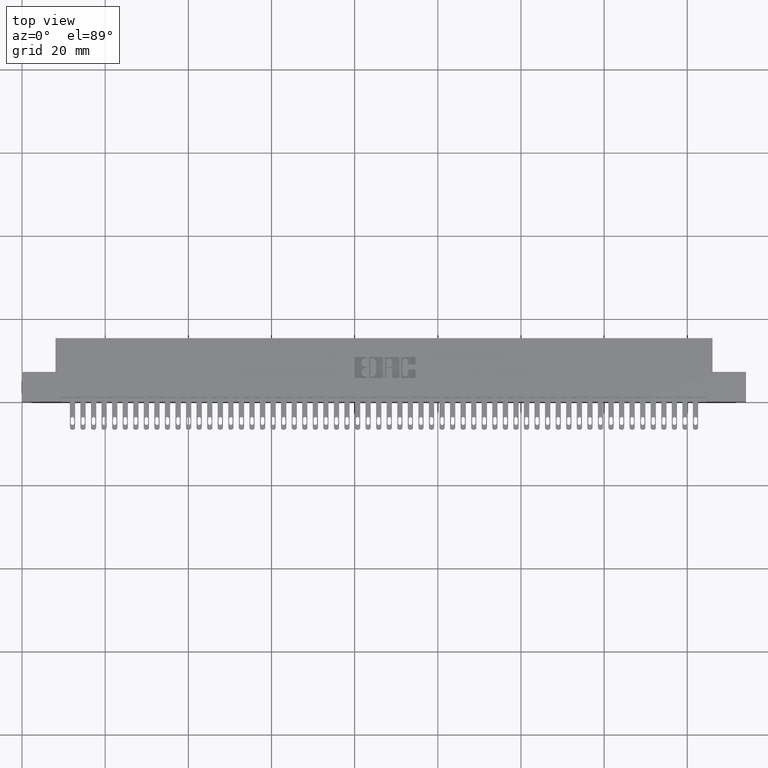
[diagram: clean part render]
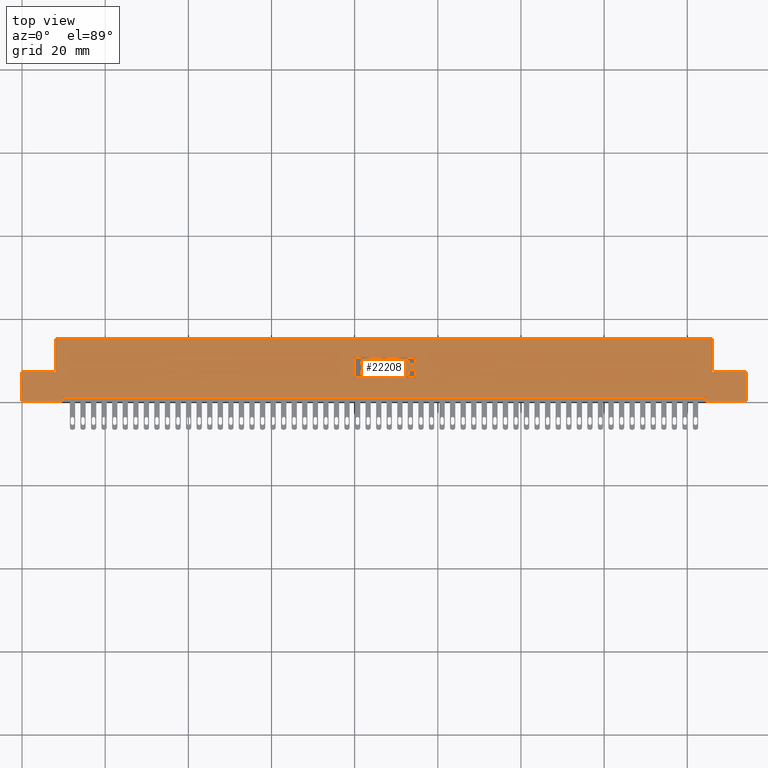
[diagram: same view with one face highlighted and labeled with its STEP entity id]
A machine part, top view. The second image highlights one B-rep face of the part: STEP entity #22208.
In plain terms, the highlighted planar face has unit normal (0, 0, -1).
Its self-contained STEP definition (entity closure, byte-faithful):
#83 = DIRECTION ( 'NONE',  ( 1.000000000000000000, 0.0000000000000000000, 0.0000000000000000000 ) ) ;
#142 = CIRCLE ( 'NONE', #11136, 0.006870969142663458500 ) ;
#182 = EDGE_CURVE ( 'NONE', #29426, #5958, #28536, .T. ) ;
#257 = EDGE_CURVE ( 'NONE', #28094, #14940, #14065, .T. ) ;
#273 = ORIENTED_EDGE ( 'NONE', *, *, #24806, .F. ) ;
#344 = DIRECTION ( 'NONE',  ( -0.0000000000000000000, 0.0000000000000000000, 1.000000000000000000 ) ) ;
#422 = AXIS2_PLACEMENT_3D ( 'NONE', #33633, #8412, #83 ) ;
#484 = DIRECTION ( 'NONE',  ( -1.000000000000000000, -3.530861605407645300E-014, 0.0000000000000000000 ) ) ;
#513 = VERTEX_POINT ( 'NONE', #24512 ) ;
#588 = CARTESIAN_POINT ( 'NONE',  ( 3.260633606535310300, 0.3200000000000206000, 0.0000000000000000000 ) ) ;
#658 = DIRECTION ( 'NONE',  ( 1.000000000000000000, 0.0000000000000000000, 0.0000000000000000000 ) ) ;
#722 = DIRECTION ( 'NONE',  ( -0.0000000000000000000, 0.0000000000000000000, 1.000000000000000000 ) ) ;
#857 = CARTESIAN_POINT ( 'NONE',  ( 3.215726915352927800, 0.0000000000000000000, 0.0000000000000000000 ) ) ;
#869 = ORIENTED_EDGE ( 'NONE', *, *, #33970, .F. ) ;
#888 = EDGE_LOOP ( 'NONE', ( #27186, #25539, #28767, #16270, #30651, #32415, #15872, #12394, #14517, #20937, #17443, #18911 ) ) ;
#950 = VECTOR ( 'NONE', #4045, 39.37007874015748100 ) ;
#958 = DIRECTION ( 'NONE',  ( -0.0000000000000000000, 0.0000000000000000000, 1.000000000000000000 ) ) ;
#1008 = ORIENTED_EDGE ( 'NONE', *, *, #15369, .T. ) ;
#1038 = DIRECTION ( 'NONE',  ( 1.000000000000000000, 0.0000000000000000000, 0.0000000000000000000 ) ) ;
#1060 = CARTESIAN_POINT ( 'NONE',  ( 0.3775000000000000600, 0.04000000000000000100, 1.136376037298107100E-019 ) ) ;
#1229 = CARTESIAN_POINT ( 'NONE',  ( 3.247137060005109300, 0.2669953808994906500, 0.0000000000000000000 ) ) ;
#1237 = LINE ( 'NONE', #17691, #13021 ) ;
#1342 = DIRECTION ( 'NONE',  ( 1.000000000000000000, 0.0000000000000000000, 0.0000000000000000000 ) ) ;
#1380 = EDGE_LOOP ( 'NONE', ( #12006, #3403, #28157, #36165, #16628, #26714, #25190, #32218, #13237, #24721, #2341, #11481, #19254, #7897, #23385, #19857, #32421, #17117, #10881, #34400 ) ) ;
#1387 = AXIS2_PLACEMENT_3D ( 'NONE', #13082, #32801, #4878 ) ;
#1422 = EDGE_CURVE ( 'NONE', #31590, #28218, #26235, .T. ) ;
#1458 = ORIENTED_EDGE ( 'NONE', *, *, #10581, .T. ) ;
#1488 = CARTESIAN_POINT ( 'NONE',  ( 3.260633606415414200, 0.2218432979619859900, 0.0000000000000000000 ) ) ;
#1522 = VERTEX_POINT ( 'NONE', #27187 ) ;
#1556 = VERTEX_POINT ( 'NONE', #19366 ) ;
#1614 = EDGE_CURVE ( 'NONE', #24924, #32779, #2138, .T. ) ;
#1664 = DIRECTION ( 'NONE',  ( -0.0000000000000000000, 0.0000000000000000000, 1.000000000000000000 ) ) ;
#1705 = CARTESIAN_POINT ( 'NONE',  ( 3.247137060005125300, 0.3730046191005200700, 0.0000000000000000000 ) ) ;
#1762 = CARTESIAN_POINT ( 'NONE',  ( 3.445904381632127300, 0.4181567020380069200, 0.0000000000000000000 ) ) ;
#1811 = VECTOR ( 'NONE', #11572, 39.37007874015748100 ) ;
#1816 = CARTESIAN_POINT ( 'NONE',  ( 6.854999999999999500, 0.2799999999999999700, 0.0000000000000000000 ) ) ;
#1829 = CARTESIAN_POINT ( 'NONE',  ( 0.0000000000000000000, 0.4181567020380330100, 0.0000000000000000000 ) ) ;
#1891 = DIRECTION ( 'NONE',  ( -0.0000000000000000000, 0.0000000000000000000, 1.000000000000000000 ) ) ;
#1893 = CARTESIAN_POINT ( 'NONE',  ( 3.436088711428330700, 0.4083410318342103900, 0.0000000000000000000 ) ) ;
#1914 = CARTESIAN_POINT ( 'NONE',  ( 6.854999999999999500, 0.5999999999999999800, 0.0000000000000000000 ) ) ;
#1916 = DIRECTION ( 'NONE',  ( -0.0000000000000000000, 0.0000000000000000000, 1.000000000000000000 ) ) ;
#1943 = CIRCLE ( 'NONE', #17086, 0.009815670203806345400 ) ;
#2068 = CARTESIAN_POINT ( 'NONE',  ( 0.3165000000000001100, 0.5999999999999999800, 0.0000000000000000000 ) ) ;
#2125 = DIRECTION ( 'NONE',  ( 1.000000000000000000, 0.0000000000000000000, 0.0000000000000000000 ) ) ;
#2138 = LINE ( 'NONE', #11277, #6556 ) ;
#2140 = ORIENTED_EDGE ( 'NONE', *, *, #32390, .T. ) ;
#2160 = LINE ( 'NONE', #31107, #30637 ) ;
#2165 = VERTEX_POINT ( 'NONE', #3718 ) ;
#2215 = FACE_BOUND ( 'NONE', #20001, .T. ) ;
#2267 = CARTESIAN_POINT ( 'NONE',  ( 3.459646319917449600, 0.3131290308573488900, 0.0000000000000000000 ) ) ;
#2341 = ORIENTED_EDGE ( 'NONE', *, *, #28091, .F. ) ;
#2443 = CARTESIAN_POINT ( 'NONE',  ( 3.714362961706152900, 0.2915345564089706900, 0.0000000000000000000 ) ) ;
#2468 = VERTEX_POINT ( 'NONE', #17093 ) ;
#2556 = DIRECTION ( 'NONE',  ( -0.0000000000000000000, 0.0000000000000000000, 1.000000000000000000 ) ) ;
#2595 = VERTEX_POINT ( 'NONE', #5952 ) ;
#2597 = CARTESIAN_POINT ( 'NONE',  ( 3.260633606535351200, 0.4112857328953865600, 0.0000000000000000000 ) ) ;
#2630 = DIRECTION ( 'NONE',  ( -0.0000000000000000000, 0.0000000000000000000, 1.000000000000000000 ) ) ;
#2647 = CARTESIAN_POINT ( 'NONE',  ( 6.854999999999999500, 0.2799999999999999700, 0.0000000000000000000 ) ) ;
#2721 = AXIS2_PLACEMENT_3D ( 'NONE', #28030, #8584, #19971 ) ;
#2728 = VECTOR ( 'NONE', #8685, 39.37007874015748100 ) ;
#2787 = CARTESIAN_POINT ( 'NONE',  ( 3.561729290037011400, 0.4083410318342106700, 0.0000000000000000000 ) ) ;
#2996 = DIRECTION ( 'NONE',  ( -0.0000000000000000000, 0.0000000000000000000, 1.000000000000000000 ) ) ;
#3014 = CIRCLE ( 'NONE', #18135, 0.009815670203795964800 ) ;
#3099 = CARTESIAN_POINT ( 'NONE',  ( -0.0000000000000000000, 0.3489562271012338600, 0.0000000000000000000 ) ) ;
#3215 = CIRCLE ( 'NONE', #21134, 0.006870969142663458500 ) ;
#3237 = LINE ( 'NONE', #12219, #8912 ) ;
#3249 = VECTOR ( 'NONE', #35472, 39.37007874015748100 ) ;
#3262 = EDGE_LOOP ( 'NONE', ( #6557, #35604, #21933, #869, #11954, #29688, #28333, #33171 ) ) ;
#3333 = CIRCLE ( 'NONE', #23689, 0.03141014465221592800 ) ;
#3355 = EDGE_CURVE ( 'NONE', #13932, #15362, #11262, .T. ) ;
#3403 = ORIENTED_EDGE ( 'NONE', *, *, #24390, .F. ) ;
#3428 = CARTESIAN_POINT ( 'NONE',  ( -0.0000000000000000000, 0.3131290308573571000, 0.0000000000000000000 ) ) ;
#3496 = DIRECTION ( 'NONE',  ( -0.0000000000000000000, 1.000000000000000000, -0.0000000000000000000 ) ) ;
#3581 = ORIENTED_EDGE ( 'NONE', *, *, #9251, .F. ) ;
#3674 = CARTESIAN_POINT ( 'NONE',  ( -0.0000000000000000000, 0.2218432979619834600, 0.0000000000000000000 ) ) ;
#3718 = CARTESIAN_POINT ( 'NONE',  ( 3.267504575677997500, 0.2287142671046482300, 0.0000000000000000000 ) ) ;
#3801 = DIRECTION ( 'NONE',  ( 1.000000000000000000, 0.0000000000000000000, 0.0000000000000000000 ) ) ;
#3863 = LINE ( 'NONE', #6323, #25292 ) ;
#3891 = CARTESIAN_POINT ( 'NONE',  ( 3.247137060005125300, 0.4044147637527360000, 0.0000000000000000000 ) ) ;
#3927 = DIRECTION ( 'NONE',  ( -0.0000000000000000000, 0.0000000000000000000, 1.000000000000000000 ) ) ;
#3972 = DIRECTION ( 'NONE',  ( 0.0000000000000000000, 1.000000000000000000, -0.0000000000000000000 ) ) ;
#4006 = DIRECTION ( 'NONE',  ( 1.000000000000000000, 0.0000000000000000000, 0.0000000000000000000 ) ) ;
#4045 = DIRECTION ( 'NONE',  ( 1.000000000000000000, 0.0000000000000000000, 0.0000000000000000000 ) ) ;
#4049 = ORIENTED_EDGE ( 'NONE', *, *, #7816, .F. ) ;
#4141 = CARTESIAN_POINT ( 'NONE',  ( 3.445904381632127300, 0.4083410318342103900, 0.0000000000000000000 ) ) ;
#4170 = VERTEX_POINT ( 'NONE', #14580 ) ;
#4204 = LINE ( 'NONE', #33877, #33105 ) ;
#4386 = CARTESIAN_POINT ( 'NONE',  ( 3.714362961706166600, 0.3587718973050389400, 0.0000000000000000000 ) ) ;
#4479 = CIRCLE ( 'NONE', #11009, 0.009815670203840767500 ) ;
#4609 = DIRECTION ( 'NONE',  ( 1.000000000000000000, -0.0000000000000000000, 2.468737042736138900E-015 ) ) ;
#4676 = DIRECTION ( 'NONE',  ( 1.000000000000000000, 0.0000000000000000000, 0.0000000000000000000 ) ) ;
#4718 = VECTOR ( 'NONE', #658, 39.37007874015748100 ) ;
#4722 = CARTESIAN_POINT ( 'NONE',  ( 3.260633606415414200, 0.2355852362473104800, 0.0000000000000000000 ) ) ;
#4745 = CARTESIAN_POINT ( 'NONE',  ( 0.0000000000000000000, 0.0000000000000000000, 0.0000000000000000000 ) ) ;
#4747 = CARTESIAN_POINT ( 'NONE',  ( 0.0000000000000000000, 0.5999999999999999800, 0.0000000000000000000 ) ) ;
#4828 = VECTOR ( 'NONE', #4609, 39.37007874015748100 ) ;
#4856 = VERTEX_POINT ( 'NONE', #4722 ) ;
#4878 = DIRECTION ( 'NONE',  ( 1.000000000000000000, 0.0000000000000000000, 0.0000000000000000000 ) ) ;
#5017 = CIRCLE ( 'NONE', #11254, 0.03141014465218151100 ) ;
#5241 = DIRECTION ( 'NONE',  ( 1.000000000000000000, 0.0000000000000000000, 0.0000000000000000000 ) ) ;
#5258 = VERTEX_POINT ( 'NONE', #2647 ) ;
#5338 = CARTESIAN_POINT ( 'NONE',  ( 0.0000000000000000000, 0.3013502266127578400, 0.0000000000000000000 ) ) ;
#5409 = CIRCLE ( 'NONE', #21502, 0.009815670203787221800 ) ;
#5412 = EDGE_CURVE ( 'NONE', #20356, #36076, #1237, .T. ) ;
#5442 = CARTESIAN_POINT ( 'NONE',  ( 3.561729290037010600, 0.2316589681657811300, 0.0000000000000000000 ) ) ;
#5581 = LINE ( 'NONE', #16029, #26523 ) ;
#5588 = DIRECTION ( 'NONE',  ( -0.0000000000000000000, 1.000000000000000000, -0.0000000000000000000 ) ) ;
#5609 = VERTEX_POINT ( 'NONE', #19276 ) ;
#5745 = CARTESIAN_POINT ( 'NONE',  ( 3.724178631909972100, 0.4083410318341951200, 0.0000000000000000000 ) ) ;
#5820 = CARTESIAN_POINT ( 'NONE',  ( 3.598538053301299400, 0.4083410318342103900, 0.0000000000000000000 ) ) ;
#5952 = CARTESIAN_POINT ( 'NONE',  ( 3.724178631909972100, 0.3587718973050389400, 0.0000000000000000000 ) ) ;
#5958 = VERTEX_POINT ( 'NONE', #11940 ) ;
#5989 = CARTESIAN_POINT ( 'NONE',  ( 3.654978156973165900, 0.3587718973050455000, 0.0000000000000000000 ) ) ;
#5992 = LINE ( 'NONE', #27278, #34875 ) ;
#6001 = ORIENTED_EDGE ( 'NONE', *, *, #33985, .T. ) ;
#6245 = EDGE_CURVE ( 'NONE', #32102, #17165, #3333, .T. ) ;
#6265 = VERTEX_POINT ( 'NONE', #15928 ) ;
#6268 = CARTESIAN_POINT ( 'NONE',  ( 0.0000000000000000000, 0.3268709691426841500, 0.0000000000000000000 ) ) ;
#6306 = LINE ( 'NONE', #35545, #35180 ) ;
#6323 = CARTESIAN_POINT ( 'NONE',  ( -1.598036302492475200E-015, 0.2218432979619625000, 0.0000000000000000000 ) ) ;
#6443 = CARTESIAN_POINT ( 'NONE',  ( 3.293270709962976100, 0.2316589681657902100, 0.0000000000000000000 ) ) ;
#6556 = VECTOR ( 'NONE', #8250, 39.37007874015748100 ) ;
#6557 = ORIENTED_EDGE ( 'NONE', *, *, #31942, .F. ) ;
#6662 = VERTEX_POINT ( 'NONE', #35636 ) ;
#6718 = VECTOR ( 'NONE', #35820, 39.37007874015748100 ) ;
#6772 = DIRECTION ( 'NONE',  ( 0.0000000000000000000, 1.000000000000000000, -0.0000000000000000000 ) ) ;
#6819 = DIRECTION ( 'NONE',  ( 1.000000000000000000, 0.0000000000000000000, 0.0000000000000000000 ) ) ;
#6825 = LINE ( 'NONE', #21126, #34406 ) ;
#7041 = EDGE_CURVE ( 'NONE', #28094, #27509, #32643, .T. ) ;
#7171 = EDGE_CURVE ( 'NONE', #4170, #27568, #5017, .T. ) ;
#7218 = CARTESIAN_POINT ( 'NONE',  ( 3.260633606535310300, 0.3200000000000206000, 0.0000000000000000000 ) ) ;
#7399 = EDGE_CURVE ( 'NONE', #32701, #20017, #26422, .T. ) ;
#7407 = ORIENTED_EDGE ( 'NONE', *, *, #19122, .T. ) ;
#7481 = VERTEX_POINT ( 'NONE', #27747 ) ;
#7573 = VERTEX_POINT ( 'NONE', #31308 ) ;
#7672 = VECTOR ( 'NONE', #9060, 39.37007874015748100 ) ;
#7772 = AXIS2_PLACEMENT_3D ( 'NONE', #35060, #1664, #32632 ) ;
#7794 = ORIENTED_EDGE ( 'NONE', *, *, #28452, .F. ) ;
#7816 = EDGE_CURVE ( 'NONE', #19500, #26234, #22470, .T. ) ;
#7863 = DIRECTION ( 'NONE',  ( 1.000000000000000000, 0.0000000000000000000, 0.0000000000000000000 ) ) ;
#7897 = ORIENTED_EDGE ( 'NONE', *, *, #8720, .F. ) ;
#7986 = VECTOR ( 'NONE', #24876, 39.37007874015748100 ) ;
#8155 = DIRECTION ( 'NONE',  ( -1.000000000000000000, 0.0000000000000000000, 0.0000000000000000000 ) ) ;
#8242 = CARTESIAN_POINT ( 'NONE',  ( 3.146526440416115300, 0.4083410318342103900, 0.0000000000000000000 ) ) ;
#8250 = DIRECTION ( 'NONE',  ( 0.0000000000000000000, -1.000000000000000000, 0.0000000000000000000 ) ) ;
#8408 = VECTOR ( 'NONE', #3496, 39.37007874015748100 ) ;
#8412 = DIRECTION ( 'NONE',  ( -0.0000000000000000000, 0.0000000000000000000, 1.000000000000000000 ) ) ;
#8430 = LINE ( 'NONE', #18757, #7986 ) ;
#8445 = EDGE_CURVE ( 'NONE', #13974, #23868, #8430, .T. ) ;
#8568 = ORIENTED_EDGE ( 'NONE', *, *, #16587, .F. ) ;
#8584 = DIRECTION ( 'NONE',  ( -0.0000000000000000000, 0.0000000000000000000, 1.000000000000000000 ) ) ;
#8628 = CARTESIAN_POINT ( 'NONE',  ( 3.293270709962976100, 0.2218432979619834600, 0.0000000000000000000 ) ) ;
#8665 = CARTESIAN_POINT ( 'NONE',  ( 3.654978156973165900, 0.3781578454992601800, 0.0000000000000000000 ) ) ;
#8685 = DIRECTION ( 'NONE',  ( -1.000000000000000000, 0.0000000000000000000, 0.0000000000000000000 ) ) ;
#8720 = EDGE_CURVE ( 'NONE', #20183, #27552, #31607, .T. ) ;
#8788 = ORIENTED_EDGE ( 'NONE', *, *, #30129, .T. ) ;
#8796 = DIRECTION ( 'NONE',  ( 1.000000000000000000, 0.0000000000000000000, 0.0000000000000000000 ) ) ;
#8848 = LINE ( 'NONE', #31983, #34712 ) ;
#8874 = VERTEX_POINT ( 'NONE', #10852 ) ;
#8882 = LINE ( 'NONE', #33720, #34745 ) ;
#8912 = VECTOR ( 'NONE', #6772, 39.37007874015748100 ) ;
#8971 = CIRCLE ( 'NONE', #13309, 0.006870969142662365600 ) ;
#9049 = ORIENTED_EDGE ( 'NONE', *, *, #18374, .F. ) ;
#9060 = DIRECTION ( 'NONE',  ( 1.000000000000000000, 0.0000000000000000000, 0.0000000000000000000 ) ) ;
#9201 = EDGE_CURVE ( 'NONE', #19009, #20798, #23748, .T. ) ;
#9226 = VECTOR ( 'NONE', #12445, 39.37007874015748100 ) ;
#9251 = EDGE_CURVE ( 'NONE', #14859, #23174, #9690, .T. ) ;
#9271 = DIRECTION ( 'NONE',  ( 1.000000000000000000, 0.0000000000000000000, 0.0000000000000000000 ) ) ;
#9401 = LINE ( 'NONE', #16624, #32209 ) ;
#9433 = DIRECTION ( 'NONE',  ( -1.000000000000000000, -0.0000000000000000000, 1.862911536554273900E-020 ) ) ;
#9439 = ORIENTED_EDGE ( 'NONE', *, *, #24206, .F. ) ;
#9479 = VERTEX_POINT ( 'NONE', #23806 ) ;
#9588 = DIRECTION ( 'NONE',  ( -0.0000000000000000000, 0.0000000000000000000, 1.000000000000000000 ) ) ;
#9606 = DIRECTION ( 'NONE',  ( -0.0000000000000000000, 0.0000000000000000000, 1.000000000000000000 ) ) ;
#9638 = FACE_BOUND ( 'NONE', #24815, .T. ) ;
#9648 = VECTOR ( 'NONE', #484, 39.37007874015748100 ) ;
#9663 = CARTESIAN_POINT ( 'NONE',  ( 3.156342110619938100, 0.4181567020380330100, 0.0000000000000000000 ) ) ;
#9690 = CIRCLE ( 'NONE', #20712, 0.009815670203796511200 ) ;
#9809 = CIRCLE ( 'NONE', #15477, 0.009815670203805252500 ) ;
#9959 = ORIENTED_EDGE ( 'NONE', *, *, #6245, .T. ) ;
#9986 = EDGE_CURVE ( 'NONE', #34548, #34295, #25416, .T. ) ;
#9988 = DIRECTION ( 'NONE',  ( 1.000000000000000000, 0.0000000000000000000, 0.0000000000000000000 ) ) ;
#10087 = CARTESIAN_POINT ( 'NONE',  ( 3.146526440416115300, 0.0000000000000000000, 0.0000000000000000000 ) ) ;
#10105 = DIRECTION ( 'NONE',  ( -1.000000000000000000, 0.0000000000000000000, 0.0000000000000000000 ) ) ;
#10136 = EDGE_CURVE ( 'NONE', #20608, #20798, #11402, .T. ) ;
#10138 = LINE ( 'NONE', #6268, #2728 ) ;
#10209 = VECTOR ( 'NONE', #26814, 39.37007874015748100 ) ;
#10352 = CARTESIAN_POINT ( 'NONE',  ( 3.436088711428330700, 0.0000000000000000000, 0.0000000000000000000 ) ) ;
#10498 = DIRECTION ( 'NONE',  ( -0.0000000000000000000, 0.0000000000000000000, 1.000000000000000000 ) ) ;
#10581 = EDGE_CURVE ( 'NONE', #14859, #30068, #35438, .T. ) ;
#10647 = DIRECTION ( 'NONE',  ( -0.0000000000000000000, 0.0000000000000000000, 1.000000000000000000 ) ) ;
#10676 = LINE ( 'NONE', #14394, #21670 ) ;
#10682 = VERTEX_POINT ( 'NONE', #1488 ) ;
#10726 = DIRECTION ( 'NONE',  ( 1.000000000000000000, 0.0000000000000000000, 0.0000000000000000000 ) ) ;
#10783 = AXIS2_PLACEMENT_3D ( 'NONE', #25161, #10828, #25390 ) ;
#10828 = DIRECTION ( 'NONE',  ( 0.0000000000000000000, 0.0000000000000000000, -1.000000000000000000 ) ) ;
#10852 = CARTESIAN_POINT ( 'NONE',  ( 3.664793827176966400, 0.3013502266127578400, 0.0000000000000000000 ) ) ;
#10881 = ORIENTED_EDGE ( 'NONE', *, *, #7399, .F. ) ;
#10886 = CARTESIAN_POINT ( 'NONE',  ( 3.459646319917449600, 0.3033133606535458600, 0.0000000000000000000 ) ) ;
#10984 = LINE ( 'NONE', #12661, #18857 ) ;
#11009 = AXIS2_PLACEMENT_3D ( 'NONE', #23942, #9606, #15238 ) ;
#11020 = AXIS2_PLACEMENT_3D ( 'NONE', #16360, #2556, #16609 ) ;
#11136 = AXIS2_PLACEMENT_3D ( 'NONE', #588, #344, #4006 ) ;
#11254 = AXIS2_PLACEMENT_3D ( 'NONE', #1229, #3927, #1342 ) ;
#11262 = LINE ( 'NONE', #28915, #24408 ) ;
#11266 = VECTOR ( 'NONE', #10105, 39.37007874015748100 ) ;
#11277 = CARTESIAN_POINT ( 'NONE',  ( 3.654978156973165900, 0.0000000000000000000, 0.0000000000000000000 ) ) ;
#11313 = CARTESIAN_POINT ( 'NONE',  ( 3.247137060005084000, 0.2817188862052008000, 0.0000000000000000000 ) ) ;
#11338 = AXIS2_PLACEMENT_3D ( 'NONE', #11313, #2996, #13989 ) ;
#11402 = LINE ( 'NONE', #24416, #22791 ) ;
#11481 = ORIENTED_EDGE ( 'NONE', *, *, #34306, .F. ) ;
#11506 = CARTESIAN_POINT ( 'NONE',  ( 0.0000000000000000000, 0.4181567020380512800, 0.0000000000000000000 ) ) ;
#11536 = CARTESIAN_POINT ( 'NONE',  ( 3.156342110619938100, 0.4083410318342103900, 0.0000000000000000000 ) ) ;
#11572 = DIRECTION ( 'NONE',  ( 0.0000000000000000000, -1.000000000000000000, 0.0000000000000000000 ) ) ;
#11580 = CARTESIAN_POINT ( 'NONE',  ( 3.492528815100187900, 0.3131290308573500500, 0.0000000000000000000 ) ) ;
#11650 = CIRCLE ( 'NONE', #1387, 0.009815670203841313900 ) ;
#11783 = CIRCLE ( 'NONE', #14383, 0.006870969142662365600 ) ;
#11825 = ORIENTED_EDGE ( 'NONE', *, *, #23580, .F. ) ;
#11933 = CARTESIAN_POINT ( 'NONE',  ( 3.260633606535351200, 0.4044147637527360000, 0.0000000000000000000 ) ) ;
#11940 = CARTESIAN_POINT ( 'NONE',  ( 3.654978156973178700, 0.2618421540424533100, 0.0000000000000000000 ) ) ;
#11954 = ORIENTED_EDGE ( 'NONE', *, *, #24434, .F. ) ;
#11972 = CIRCLE ( 'NONE', #31200, 0.009815670203803066700 ) ;
#12006 = ORIENTED_EDGE ( 'NONE', *, *, #20427, .F. ) ;
#12032 = EDGE_CURVE ( 'NONE', #5609, #2468, #32465, .T. ) ;
#12070 = DIRECTION ( 'NONE',  ( -0.0000000000000000000, 0.0000000000000000000, 1.000000000000000000 ) ) ;
#12219 = CARTESIAN_POINT ( 'NONE',  ( 3.215726915352909600, 0.0000000000000000000, 0.0000000000000000000 ) ) ;
#12253 = VERTEX_POINT ( 'NONE', #23886 ) ;
#12298 = AXIS2_PLACEMENT_3D ( 'NONE', #12536, #1916, #21144 ) ;
#12394 = ORIENTED_EDGE ( 'NONE', *, *, #17742, .F. ) ;
#12398 = CARTESIAN_POINT ( 'NONE',  ( 3.588722383097458400, 0.4083410318342103900, 0.0000000000000000000 ) ) ;
#12408 = ORIENTED_EDGE ( 'NONE', *, *, #13256, .F. ) ;
#12445 = DIRECTION ( 'NONE',  ( 0.0000000000000000000, -1.000000000000000000, 0.0000000000000000000 ) ) ;
#12488 = CIRCLE ( 'NONE', #12298, 0.006870969142657995000 ) ;
#12536 = CARTESIAN_POINT ( 'NONE',  ( 3.442959680570987200, 0.2287142671046482300, 0.0000000000000000000 ) ) ;
#12661 = CARTESIAN_POINT ( 'NONE',  ( 3.724178631909972100, 0.0000000000000000000, 0.0000000000000000000 ) ) ;
#12735 = CARTESIAN_POINT ( 'NONE',  ( 3.561729290037013700, 0.4181567020380069200, 0.0000000000000000000 ) ) ;
#12775 = LINE ( 'NONE', #31424, #8408 ) ;
#12860 = VERTEX_POINT ( 'NONE', #27851 ) ;
#12955 = EDGE_CURVE ( 'NONE', #2165, #4856, #11783, .T. ) ;
#13005 = CARTESIAN_POINT ( 'NONE',  ( 3.260633606535335200, 0.2287142671046482300, 0.0000000000000000000 ) ) ;
#13020 = VERTEX_POINT ( 'NONE', #13711 ) ;
#13021 = VECTOR ( 'NONE', #20519, 39.37007874015748100 ) ;
#13082 = CARTESIAN_POINT ( 'NONE',  ( 3.409095618367827800, 0.4083410318342102800, 0.0000000000000000000 ) ) ;
#13214 = AXIS2_PLACEMENT_3D ( 'NONE', #24478, #10498, #27524 ) ;
#13237 = ORIENTED_EDGE ( 'NONE', *, *, #16486, .F. ) ;
#13256 = EDGE_CURVE ( 'NONE', #26004, #15259, #32363, .T. ) ;
#13309 = AXIS2_PLACEMENT_3D ( 'NONE', #36039, #22559, #33345 ) ;
#13446 = CIRCLE ( 'NONE', #422, 0.009815670203811809700 ) ;
#13459 = CARTESIAN_POINT ( 'NONE',  ( 0.3775000000000000600, 0.0000000000000000000, 0.0000000000000000000 ) ) ;
#13540 = CARTESIAN_POINT ( 'NONE',  ( 3.628721239177991700, 0.3781578459575298800, 0.0000000000000000000 ) ) ;
#13631 = DIRECTION ( 'NONE',  ( -0.0000000000000000000, 0.0000000000000000000, 1.000000000000000000 ) ) ;
#13711 = CARTESIAN_POINT ( 'NONE',  ( 3.436088711428330700, 0.2287142671046482300, 0.0000000000000000000 ) ) ;
#13722 = ORIENTED_EDGE ( 'NONE', *, *, #20207, .F. ) ;
#13932 = VERTEX_POINT ( 'NONE', #32925 ) ;
#13974 = VERTEX_POINT ( 'NONE', #27268 ) ;
#13989 = DIRECTION ( 'NONE',  ( 1.000000000000000000, 0.0000000000000000000, 0.0000000000000000000 ) ) ;
#14065 = CIRCLE ( 'NONE', #11338, 0.03141014465215583000 ) ;
#14097 = VERTEX_POINT ( 'NONE', #31192 ) ;
#14100 = DIRECTION ( 'NONE',  ( -1.000000000000000000, 0.0000000000000000000, 0.0000000000000000000 ) ) ;
#14103 = CARTESIAN_POINT ( 'NONE',  ( 3.260633606535351200, 0.4112857328953865600, 0.0000000000000000000 ) ) ;
#14195 = CIRCLE ( 'NONE', #30401, 0.009815670203797057700 ) ;
#14205 = ORIENTED_EDGE ( 'NONE', *, *, #7041, .F. ) ;
#14301 = DIRECTION ( 'NONE',  ( 0.0000000000000000000, 1.000000000000000000, -0.0000000000000000000 ) ) ;
#14383 = AXIS2_PLACEMENT_3D ( 'NONE', #13005, #1891, #4676 ) ;
#14394 = CARTESIAN_POINT ( 'NONE',  ( -0.0000000000000000000, 0.4044147637527360000, 0.0000000000000000000 ) ) ;
#14517 = ORIENTED_EDGE ( 'NONE', *, *, #5412, .F. ) ;
#14580 = CARTESIAN_POINT ( 'NONE',  ( 3.215726915352927800, 0.2669953808994906500, 0.0000000000000000000 ) ) ;
#14682 = CARTESIAN_POINT ( 'NONE',  ( 3.714362961706133800, 0.2218432979619834600, 0.0000000000000000000 ) ) ;
#14859 = VERTEX_POINT ( 'NONE', #1762 ) ;
#14899 = FACE_OUTER_BOUND ( 'NONE', #888, .T. ) ;
#14940 = VERTEX_POINT ( 'NONE', #34490 ) ;
#14981 = EDGE_CURVE ( 'NONE', #15362, #35509, #34855, .T. ) ;
#15016 = EDGE_CURVE ( 'NONE', #13020, #20387, #12488, .T. ) ;
#15190 = CARTESIAN_POINT ( 'NONE',  ( -0.0000000000000000000, 0.4181567020380069200, 0.0000000000000000000 ) ) ;
#15238 = DIRECTION ( 'NONE',  ( 1.000000000000000000, 0.0000000000000000000, 0.0000000000000000000 ) ) ;
#15259 = VERTEX_POINT ( 'NONE', #8242 ) ;
#15287 = ORIENTED_EDGE ( 'NONE', *, *, #26223, .F. ) ;
#15362 = VERTEX_POINT ( 'NONE', #28837 ) ;
#15369 = EDGE_CURVE ( 'NONE', #31844, #34548, #14195, .T. ) ;
#15477 = AXIS2_PLACEMENT_3D ( 'NONE', #4386, #34746, #23846 ) ;
#15479 = EDGE_CURVE ( 'NONE', #1522, #513, #6825, .T. ) ;
#15619 = DIRECTION ( 'NONE',  ( -0.0000000000000000000, 0.0000000000000000000, 1.000000000000000000 ) ) ;
#15667 = ORIENTED_EDGE ( 'NONE', *, *, #27813, .F. ) ;
#15872 = ORIENTED_EDGE ( 'NONE', *, *, #9201, .F. ) ;
#15919 = CARTESIAN_POINT ( 'NONE',  ( 3.714362961706168400, 0.4181567020380512800, 0.0000000000000000000 ) ) ;
#15928 = CARTESIAN_POINT ( 'NONE',  ( 3.602464321382818500, 0.3781578459575298800, 0.0000000000000000000 ) ) ;
#16029 = CARTESIAN_POINT ( 'NONE',  ( -2.801494792111651700E-014, 0.2355852362469227400, 0.0000000000000000000 ) ) ;
#16070 = VERTEX_POINT ( 'NONE', #28659 ) ;
#16111 = AXIS2_PLACEMENT_3D ( 'NONE', #13540, #24349, #16362 ) ;
#16204 = CARTESIAN_POINT ( 'NONE',  ( 3.714362961706166600, 0.3489562271012337500, 0.0000000000000000000 ) ) ;
#16235 = VERTEX_POINT ( 'NONE', #8628 ) ;
#16262 = DIRECTION ( 'NONE',  ( -1.000000000000000000, -1.189163988687022500E-013, 0.0000000000000000000 ) ) ;
#16270 = ORIENTED_EDGE ( 'NONE', *, *, #29360, .F. ) ;
#16360 = CARTESIAN_POINT ( 'NONE',  ( 3.714362961706131600, 0.4083410318342112200, 0.0000000000000000000 ) ) ;
#16362 = DIRECTION ( 'NONE',  ( 1.000000000000000000, 0.0000000000000000000, 0.0000000000000000000 ) ) ;
#16386 = VERTEX_POINT ( 'NONE', #24513 ) ;
#16402 = DIRECTION ( 'NONE',  ( -0.0000000000000000000, 0.0000000000000000000, 1.000000000000000000 ) ) ;
#16486 = EDGE_CURVE ( 'NONE', #8874, #29426, #23411, .T. ) ;
#16587 = EDGE_CURVE ( 'NONE', #31590, #17165, #3237, .T. ) ;
#16609 = DIRECTION ( 'NONE',  ( 1.000000000000000000, 0.0000000000000000000, 0.0000000000000000000 ) ) ;
#16624 = CARTESIAN_POINT ( 'NONE',  ( 6.477500000000000000, 0.04000000000000000100, 0.0000000000000000000 ) ) ;
#16628 = ORIENTED_EDGE ( 'NONE', *, *, #18329, .T. ) ;
#16721 = ORIENTED_EDGE ( 'NONE', *, *, #31514, .F. ) ;
#17033 = CARTESIAN_POINT ( 'NONE',  ( 3.418911288571669300, 0.4083410318342103900, 0.0000000000000000000 ) ) ;
#17086 = AXIS2_PLACEMENT_3D ( 'NONE', #20191, #722, #8796 ) ;
#17093 = CARTESIAN_POINT ( 'NONE',  ( 3.283455039759168900, 0.2316589681657902100, 0.0000000000000000000 ) ) ;
#17112 = DIRECTION ( 'NONE',  ( 1.000000000000000000, 0.0000000000000000000, 0.0000000000000000000 ) ) ;
#17117 = ORIENTED_EDGE ( 'NONE', *, *, #27101, .F. ) ;
#17142 = EDGE_CURVE ( 'NONE', #14097, #29197, #8882, .T. ) ;
#17165 = VERTEX_POINT ( 'NONE', #17425 ) ;
#17172 = LINE ( 'NONE', #10087, #6718 ) ;
#17286 = EDGE_CURVE ( 'NONE', #24771, #6265, #8848, .T. ) ;
#17301 = DIRECTION ( 'NONE',  ( -0.0000000000000000000, 0.0000000000000000000, 1.000000000000000000 ) ) ;
#17337 = LINE ( 'NONE', #10352, #19521 ) ;
#17381 = ORIENTED_EDGE ( 'NONE', *, *, #15016, .F. ) ;
#17425 = CARTESIAN_POINT ( 'NONE',  ( 3.215726915352909600, 0.3730046191005200700, 0.0000000000000000000 ) ) ;
#17443 = ORIENTED_EDGE ( 'NONE', *, *, #24107, .T. ) ;
#17497 = EDGE_CURVE ( 'NONE', #9479, #18927, #31656, .T. ) ;
#17499 = CARTESIAN_POINT ( 'NONE',  ( 0.0000000000000000000, 0.0000000000000000000, 0.0000000000000000000 ) ) ;
#17555 = DIRECTION ( 'NONE',  ( -0.0000000000000000000, 0.0000000000000000000, 1.000000000000000000 ) ) ;
#17664 = DIRECTION ( 'NONE',  ( 1.000000000000000000, 0.0000000000000000000, 0.0000000000000000000 ) ) ;
#17691 = CARTESIAN_POINT ( 'NONE',  ( -2.134256245050205600E-018, 0.2799999999999999700, 0.0000000000000000000 ) ) ;
#17742 = EDGE_CURVE ( 'NONE', #36076, #19009, #12775, .T. ) ;
#17796 = DIRECTION ( 'NONE',  ( -0.0000000000000000000, 0.0000000000000000000, 1.000000000000000000 ) ) ;
#17804 = CIRCLE ( 'NONE', #30237, 0.009815670203806891800 ) ;
#17818 = CIRCLE ( 'NONE', #13214, 0.009815670203806891800 ) ;
#17836 = CARTESIAN_POINT ( 'NONE',  ( 3.502344485303984900, 0.3033133606535437000, 0.0000000000000000000 ) ) ;
#18135 = AXIS2_PLACEMENT_3D ( 'NONE', #5442, #10647, #30039 ) ;
#18323 = ORIENTED_EDGE ( 'NONE', *, *, #7171, .T. ) ;
#18329 = EDGE_CURVE ( 'NONE', #24924, #6265, #25720, .T. ) ;
#18343 = CARTESIAN_POINT ( 'NONE',  ( 3.449830649713646800, 0.2287142671046482300, 0.0000000000000000000 ) ) ;
#18374 = EDGE_CURVE ( 'NONE', #18927, #10682, #3863, .T. ) ;
#18472 = CARTESIAN_POINT ( 'NONE',  ( 3.418911288571669300, 0.2316589681657902100, 0.0000000000000000000 ) ) ;
#18542 = LINE ( 'NONE', #11506, #33481 ) ;
#18619 = DIRECTION ( 'NONE',  ( 0.0000000000000000000, 1.000000000000000000, -0.0000000000000000000 ) ) ;
#18711 = LINE ( 'NONE', #1829, #11266 ) ;
#18757 = CARTESIAN_POINT ( 'NONE',  ( 0.0000000000000000000, 0.0000000000000000000, 0.0000000000000000000 ) ) ;
#18857 = VECTOR ( 'NONE', #24167, 39.37007874015748100 ) ;
#18873 = DIRECTION ( 'NONE',  ( -0.0000000000000000000, 0.0000000000000000000, 1.000000000000000000 ) ) ;
#18911 = ORIENTED_EDGE ( 'NONE', *, *, #14981, .F. ) ;
#18927 = VERTEX_POINT ( 'NONE', #32310 ) ;
#19009 = VERTEX_POINT ( 'NONE', #2068 ) ;
#19122 = EDGE_CURVE ( 'NONE', #13020, #23174, #17337, .T. ) ;
#19254 = ORIENTED_EDGE ( 'NONE', *, *, #20305, .F. ) ;
#19276 = CARTESIAN_POINT ( 'NONE',  ( 3.283455039759168900, 0.4083410318342103900, 0.0000000000000000000 ) ) ;
#19366 = CARTESIAN_POINT ( 'NONE',  ( 3.664793827176977500, 0.3489562271012338600, 0.0000000000000000000 ) ) ;
#19370 = VERTEX_POINT ( 'NONE', #22970 ) ;
#19470 = DIRECTION ( 'NONE',  ( 1.000000000000000000, 0.0000000000000000000, 0.0000000000000000000 ) ) ;
#19500 = VERTEX_POINT ( 'NONE', #11933 ) ;
#19521 = VECTOR ( 'NONE', #30222, 39.37007874015748100 ) ;
#19697 = EDGE_CURVE ( 'NONE', #31600, #22301, #23873, .T. ) ;
#19705 = EDGE_CURVE ( 'NONE', #10682, #2165, #8971, .T. ) ;
#19783 = ORIENTED_EDGE ( 'NONE', *, *, #19705, .F. ) ;
#19805 = EDGE_CURVE ( 'NONE', #12253, #8874, #33052, .T. ) ;
#19806 = DIRECTION ( 'NONE',  ( -0.0000000000000000000, -1.000000000000000000, -0.0000000000000000000 ) ) ;
#19838 = CARTESIAN_POINT ( 'NONE',  ( 3.598538053301299400, 0.4181567020380512800, 0.0000000000000000000 ) ) ;
#19857 = ORIENTED_EDGE ( 'NONE', *, *, #35835, .F. ) ;
#19971 = DIRECTION ( 'NONE',  ( 1.000000000000000000, 0.0000000000000000000, 0.0000000000000000000 ) ) ;
#20001 = EDGE_LOOP ( 'NONE', ( #9959, #8568, #34910, #32585, #15667, #31499, #14205, #25012, #9439, #18323, #25095, #34630, #19783, #9049, #29760, #7794, #12408, #273, #11825, #4049, #15287 ) ) ;
#20017 = VERTEX_POINT ( 'NONE', #15919 ) ;
#20115 = CARTESIAN_POINT ( 'NONE',  ( 6.538499999999999100, 0.5999999999999999800, -7.813552740259899900E-016 ) ) ;
#20183 = VERTEX_POINT ( 'NONE', #33664 ) ;
#20191 = CARTESIAN_POINT ( 'NONE',  ( 3.714362961706133800, 0.2316589681657902100, 0.0000000000000000000 ) ) ;
#20207 = EDGE_CURVE ( 'NONE', #12860, #29197, #31708, .T. ) ;
#20216 = VECTOR ( 'NONE', #35655, 39.37007874015748100 ) ;
#20305 = EDGE_CURVE ( 'NONE', #27552, #19370, #1943, .T. ) ;
#20353 = VERTEX_POINT ( 'NONE', #34154 ) ;
#20356 = VERTEX_POINT ( 'NONE', #28388 ) ;
#20387 = VERTEX_POINT ( 'NONE', #18343 ) ;
#20395 = CARTESIAN_POINT ( 'NONE',  ( 3.492528815100187900, 0.3033133606535530800, 0.0000000000000000000 ) ) ;
#20427 = EDGE_CURVE ( 'NONE', #24276, #2595, #9809, .T. ) ;
#20490 = EDGE_CURVE ( 'NONE', #27509, #20353, #3215, .T. ) ;
#20519 = DIRECTION ( 'NONE',  ( 1.000000000000000000, 0.0000000000000000000, 0.0000000000000000000 ) ) ;
#20608 = VERTEX_POINT ( 'NONE', #28172 ) ;
#20712 = AXIS2_PLACEMENT_3D ( 'NONE', #4141, #958, #9271 ) ;
#20798 = VERTEX_POINT ( 'NONE', #20115 ) ;
#20870 = AXIS2_PLACEMENT_3D ( 'NONE', #5820, #2630, #30534 ) ;
#20937 = ORIENTED_EDGE ( 'NONE', *, *, #33655, .T. ) ;
#21126 = CARTESIAN_POINT ( 'NONE',  ( 0.0000000000000000000, 0.4181567020380512800, 0.0000000000000000000 ) ) ;
#21134 = AXIS2_PLACEMENT_3D ( 'NONE', #7218, #26752, #9988 ) ;
#21144 = DIRECTION ( 'NONE',  ( 1.000000000000000000, 0.0000000000000000000, 0.0000000000000000000 ) ) ;
#21258 = VERTEX_POINT ( 'NONE', #23096 ) ;
#21262 = CARTESIAN_POINT ( 'NONE',  ( 3.598538053301265200, 0.2316589681657902100, 0.0000000000000000000 ) ) ;
#21287 = EDGE_CURVE ( 'NONE', #513, #5609, #4479, .T. ) ;
#21346 = CARTESIAN_POINT ( 'NONE',  ( -0.0000000000000000000, 0.2218432979619834600, 0.0000000000000000000 ) ) ;
#21450 = AXIS2_PLACEMENT_3D ( 'NONE', #11536, #17301, #28701 ) ;
#21452 = EDGE_CURVE ( 'NONE', #7481, #28218, #10138, .T. ) ;
#21492 = LINE ( 'NONE', #1816, #4828 ) ;
#21502 = AXIS2_PLACEMENT_3D ( 'NONE', #2443, #27146, #10726 ) ;
#21670 = VECTOR ( 'NONE', #17112, 39.37007874015748100 ) ;
#21769 = DIRECTION ( 'NONE',  ( -0.0000000000000000000, 0.0000000000000000000, 1.000000000000000000 ) ) ;
#21843 = CARTESIAN_POINT ( 'NONE',  ( 3.654978156973178700, 0.2915345564089689700, 0.0000000000000000000 ) ) ;
#21862 = EDGE_CURVE ( 'NONE', #24771, #5958, #29396, .T. ) ;
#21885 = LINE ( 'NONE', #17499, #24518 ) ;
#21933 = ORIENTED_EDGE ( 'NONE', *, *, #25476, .F. ) ;
#21953 = VECTOR ( 'NONE', #30701, 39.37007874015748100 ) ;
#22117 = PLANE ( 'NONE',  #10783 ) ;
#22132 = DIRECTION ( 'NONE',  ( -0.0000000000000000000, 0.0000000000000000000, 1.000000000000000000 ) ) ;
#22208 = ADVANCED_FACE ( 'NONE', ( #22360, #2215, #14899, #31987, #9638 ), #22117, .F. ) ;
#22301 = VERTEX_POINT ( 'NONE', #12398 ) ;
#22360 = FACE_BOUND ( 'NONE', #1380, .T. ) ;
#22470 = CIRCLE ( 'NONE', #29128, 0.006870969142648706400 ) ;
#22559 = DIRECTION ( 'NONE',  ( -0.0000000000000000000, 0.0000000000000000000, 1.000000000000000000 ) ) ;
#22791 = VECTOR ( 'NONE', #5588, 39.37007874015748100 ) ;
#22970 = CARTESIAN_POINT ( 'NONE',  ( 3.724178631909940100, 0.2316589681657832400, 0.0000000000000000000 ) ) ;
#23096 = CARTESIAN_POINT ( 'NONE',  ( 3.571544960240806300, 0.2316589681657811300, 0.0000000000000000000 ) ) ;
#23174 = VERTEX_POINT ( 'NONE', #1893 ) ;
#23334 = CARTESIAN_POINT ( 'NONE',  ( 3.512160155507785900, 0.2218432979619849000, 0.0000000000000000000 ) ) ;
#23385 = ORIENTED_EDGE ( 'NONE', *, *, #32495, .F. ) ;
#23408 = DIRECTION ( 'NONE',  ( 0.0000000000000000000, -1.000000000000000000, 0.0000000000000000000 ) ) ;
#23411 = CIRCLE ( 'NONE', #2721, 0.009815670203787768200 ) ;
#23524 = EDGE_CURVE ( 'NONE', #14097, #21258, #3014, .T. ) ;
#23580 = EDGE_CURVE ( 'NONE', #26234, #16386, #35862, .T. ) ;
#23689 = AXIS2_PLACEMENT_3D ( 'NONE', #1705, #21769, #6819 ) ;
#23747 = CARTESIAN_POINT ( 'NONE',  ( 3.247137060005109300, 0.2355852362473088700, 0.0000000000000000000 ) ) ;
#23748 = LINE ( 'NONE', #32065, #21953 ) ;
#23806 = CARTESIAN_POINT ( 'NONE',  ( 3.146526440416115300, 0.2316589681657902100, 0.0000000000000000000 ) ) ;
#23846 = DIRECTION ( 'NONE',  ( 1.000000000000000000, 0.0000000000000000000, 0.0000000000000000000 ) ) ;
#23859 = CARTESIAN_POINT ( 'NONE',  ( 3.724178631909940100, 0.2915345564089706900, 0.0000000000000000000 ) ) ;
#23868 = VERTEX_POINT ( 'NONE', #35986 ) ;
#23873 = CIRCLE ( 'NONE', #20870, 0.009815670203841313900 ) ;
#23886 = CARTESIAN_POINT ( 'NONE',  ( 3.714362961706156400, 0.3013502266127578400, 0.0000000000000000000 ) ) ;
#23942 = CARTESIAN_POINT ( 'NONE',  ( 3.293270709963009900, 0.4083410318342103900, 0.0000000000000000000 ) ) ;
#23968 = CIRCLE ( 'NONE', #29282, 0.009815670203795418300 ) ;
#24020 = LINE ( 'NONE', #3099, #4718 ) ;
#24025 = CARTESIAN_POINT ( 'NONE',  ( 3.215726915352909600, 0.3582811137948586100, 0.0000000000000000000 ) ) ;
#24107 = EDGE_CURVE ( 'NONE', #35134, #35509, #21885, .T. ) ;
#24167 = DIRECTION ( 'NONE',  ( 0.0000000000000000000, 1.000000000000000000, -0.0000000000000000000 ) ) ;
#24206 = EDGE_CURVE ( 'NONE', #4170, #14940, #33017, .T. ) ;
#24221 = ORIENTED_EDGE ( 'NONE', *, *, #23524, .F. ) ;
#24276 = VERTEX_POINT ( 'NONE', #16204 ) ;
#24349 = DIRECTION ( 'NONE',  ( -0.0000000000000000000, 0.0000000000000000000, 1.000000000000000000 ) ) ;
#24390 = EDGE_CURVE ( 'NONE', #1556, #24276, #24020, .T. ) ;
#24408 = VECTOR ( 'NONE', #9433, 39.37007874015748100 ) ;
#24416 = CARTESIAN_POINT ( 'NONE',  ( 6.538499999999999100, 0.2799999999999999700, -7.813552740259899900E-016 ) ) ;
#24434 = EDGE_CURVE ( 'NONE', #2468, #16235, #30142, .T. ) ;
#24478 = CARTESIAN_POINT ( 'NONE',  ( 3.409095618367861600, 0.2316589681657902100, 0.0000000000000000000 ) ) ;
#24512 = CARTESIAN_POINT ( 'NONE',  ( 3.293270709963009900, 0.4181567020380512800, 0.0000000000000000000 ) ) ;
#24513 = CARTESIAN_POINT ( 'NONE',  ( 3.260633606535351200, 0.4181567020380330100, 0.0000000000000000000 ) ) ;
#24518 = VECTOR ( 'NONE', #3801, 39.37007874015748100 ) ;
#24533 = DIRECTION ( 'NONE',  ( 0.0000000000000000000, 1.000000000000000000, -0.0000000000000000000 ) ) ;
#24586 = CARTESIAN_POINT ( 'NONE',  ( 3.247137060005084000, 0.3131290308573571000, 0.0000000000000000000 ) ) ;
#24714 = LINE ( 'NONE', #21346, #10209 ) ;
#24721 = ORIENTED_EDGE ( 'NONE', *, *, #19805, .F. ) ;
#24771 = VERTEX_POINT ( 'NONE', #34282 ) ;
#24806 = EDGE_CURVE ( 'NONE', #16386, #26004, #18711, .T. ) ;
#24815 = EDGE_LOOP ( 'NONE', ( #1458, #16721, #31659, #24221, #33583, #13722, #8788, #1008, #29325, #6001, #2140, #17381, #7407, #3581 ) ) ;
#24876 = DIRECTION ( 'NONE',  ( 1.000000000000000000, 0.0000000000000000000, 0.0000000000000000000 ) ) ;
#24924 = VERTEX_POINT ( 'NONE', #8665 ) ;
#24928 = AXIS2_PLACEMENT_3D ( 'NONE', #2597, #18873, #2125 ) ;
#24942 = VECTOR ( 'NONE', #34556, 39.37007874015748100 ) ;
#25012 = ORIENTED_EDGE ( 'NONE', *, *, #257, .T. ) ;
#25095 = ORIENTED_EDGE ( 'NONE', *, *, #25479, .F. ) ;
#25152 = DIRECTION ( 'NONE',  ( 1.000000000000000000, 0.0000000000000000000, 0.0000000000000000000 ) ) ;
#25161 = CARTESIAN_POINT ( 'NONE',  ( 0.0000000000000000000, 0.5999999999999999800, 0.0000000000000000000 ) ) ;
#25190 = ORIENTED_EDGE ( 'NONE', *, *, #21862, .T. ) ;
#25292 = VECTOR ( 'NONE', #28438, 39.37007874015748100 ) ;
#25390 = DIRECTION ( 'NONE',  ( -1.000000000000000000, 0.0000000000000000000, -0.0000000000000000000 ) ) ;
#25398 = LINE ( 'NONE', #28921, #35034 ) ;
#25416 = LINE ( 'NONE', #28384, #9648 ) ;
#25476 = EDGE_CURVE ( 'NONE', #16070, #27657, #17818, .T. ) ;
#25479 = EDGE_CURVE ( 'NONE', #4856, #27568, #5581, .T. ) ;
#25486 = EDGE_CURVE ( 'NONE', #27657, #27995, #5992, .T. ) ;
#25539 = ORIENTED_EDGE ( 'NONE', *, *, #26189, .T. ) ;
#25720 = CIRCLE ( 'NONE', #16111, 0.02625691779517339700 ) ;
#26004 = VERTEX_POINT ( 'NONE', #9663 ) ;
#26189 = EDGE_CURVE ( 'NONE', #13932, #13974, #9401, .T. ) ;
#26223 = EDGE_CURVE ( 'NONE', #32102, #19500, #10676, .T. ) ;
#26234 = VERTEX_POINT ( 'NONE', #33895 ) ;
#26235 = CIRCLE ( 'NONE', #32490, 0.03141014465217440600 ) ;
#26260 = DIRECTION ( 'NONE',  ( 0.0000000000000000000, -1.000000000000000000, 0.0000000000000000000 ) ) ;
#26365 = DIRECTION ( 'NONE',  ( -0.0000000000000000000, -1.000000000000000000, -0.0000000000000000000 ) ) ;
#26422 = CIRCLE ( 'NONE', #11020, 0.009815670203840221000 ) ;
#26523 = VECTOR ( 'NONE', #16262, 39.37007874015748100 ) ;
#26714 = ORIENTED_EDGE ( 'NONE', *, *, #17286, .F. ) ;
#26752 = DIRECTION ( 'NONE',  ( -0.0000000000000000000, 0.0000000000000000000, 1.000000000000000000 ) ) ;
#26814 = DIRECTION ( 'NONE',  ( 1.000000000000000000, 0.0000000000000000000, 0.0000000000000000000 ) ) ;
#26861 = DIRECTION ( 'NONE',  ( 1.000000000000000000, 0.0000000000000000000, 0.0000000000000000000 ) ) ;
#27101 = EDGE_CURVE ( 'NONE', #20017, #31600, #18542, .T. ) ;
#27146 = DIRECTION ( 'NONE',  ( -0.0000000000000000000, 0.0000000000000000000, 1.000000000000000000 ) ) ;
#27186 = ORIENTED_EDGE ( 'NONE', *, *, #3355, .F. ) ;
#27187 = CARTESIAN_POINT ( 'NONE',  ( 3.409095618367896200, 0.4181567020380512800, 0.0000000000000000000 ) ) ;
#27268 = CARTESIAN_POINT ( 'NONE',  ( 6.477500000000000000, 0.0000000000000000000, 0.0000000000000000000 ) ) ;
#27278 = CARTESIAN_POINT ( 'NONE',  ( 3.418911288571669300, 0.0000000000000000000, 0.0000000000000000000 ) ) ;
#27386 = VECTOR ( 'NONE', #26365, 39.37007874015748100 ) ;
#27409 = VERTEX_POINT ( 'NONE', #36146 ) ;
#27509 = VERTEX_POINT ( 'NONE', #28154 ) ;
#27524 = DIRECTION ( 'NONE',  ( 1.000000000000000000, 0.0000000000000000000, 0.0000000000000000000 ) ) ;
#27552 = VERTEX_POINT ( 'NONE', #14682 ) ;
#27568 = VERTEX_POINT ( 'NONE', #23747 ) ;
#27657 = VERTEX_POINT ( 'NONE', #18472 ) ;
#27747 = CARTESIAN_POINT ( 'NONE',  ( 3.260633606535310300, 0.3268709691426841500, 0.0000000000000000000 ) ) ;
#27803 = VECTOR ( 'NONE', #8155, 39.37007874015748100 ) ;
#27813 = EDGE_CURVE ( 'NONE', #20353, #7481, #142, .T. ) ;
#27851 = CARTESIAN_POINT ( 'NONE',  ( 3.502344485303984900, 0.2316589681657881000, 0.0000000000000000000 ) ) ;
#27995 = VERTEX_POINT ( 'NONE', #17033 ) ;
#28030 = CARTESIAN_POINT ( 'NONE',  ( 3.664793827176966400, 0.2915345564089698600, 0.0000000000000000000 ) ) ;
#28091 = EDGE_CURVE ( 'NONE', #35057, #12253, #5409, .T. ) ;
#28094 = VERTEX_POINT ( 'NONE', #24586 ) ;
#28154 = CARTESIAN_POINT ( 'NONE',  ( 3.260633606415388500, 0.3131290308573571000, 0.0000000000000000000 ) ) ;
#28157 = ORIENTED_EDGE ( 'NONE', *, *, #31474, .F. ) ;
#28172 = CARTESIAN_POINT ( 'NONE',  ( 6.538499999999999100, 0.2799999999999999700, -7.813552740259899900E-016 ) ) ;
#28218 = VERTEX_POINT ( 'NONE', #30705 ) ;
#28333 = ORIENTED_EDGE ( 'NONE', *, *, #21287, .F. ) ;
#28353 = CARTESIAN_POINT ( 'NONE',  ( 3.571544960240806300, 0.0000000000000000000, 0.0000000000000000000 ) ) ;
#28384 = CARTESIAN_POINT ( 'NONE',  ( -1.105615272592287700E-014, 0.3131290308572267100, 0.0000000000000000000 ) ) ;
#28388 = CARTESIAN_POINT ( 'NONE',  ( -2.134256245050205600E-018, 0.2799999999999999700, 0.0000000000000000000 ) ) ;
#28438 = DIRECTION ( 'NONE',  ( 1.000000000000000000, 7.203446383881635600E-015, 0.0000000000000000000 ) ) ;
#28452 = EDGE_CURVE ( 'NONE', #15259, #9479, #17172, .T. ) ;
#28485 = LINE ( 'NONE', #1914, #35050 ) ;
#28521 = DIRECTION ( 'NONE',  ( 0.0000000000000000000, 1.000000000000000000, -0.0000000000000000000 ) ) ;
#28536 = LINE ( 'NONE', #29204, #20216 ) ;
#28619 = DIRECTION ( 'NONE',  ( 1.000000000000000000, 0.0000000000000000000, 0.0000000000000000000 ) ) ;
#28659 = CARTESIAN_POINT ( 'NONE',  ( 3.409095618367861600, 0.2218432979619834600, 0.0000000000000000000 ) ) ;
#28701 = DIRECTION ( 'NONE',  ( 1.000000000000000000, 0.0000000000000000000, 0.0000000000000000000 ) ) ;
#28757 = CARTESIAN_POINT ( 'NONE',  ( 3.156342110619922100, 0.2316589681657902100, 0.0000000000000000000 ) ) ;
#28767 = ORIENTED_EDGE ( 'NONE', *, *, #8445, .T. ) ;
#28837 = CARTESIAN_POINT ( 'NONE',  ( 0.3775000000000000600, 0.04000000000000000100, 1.136376037298107100E-019 ) ) ;
#28915 = CARTESIAN_POINT ( 'NONE',  ( 0.3775000000000000600, 0.04000000000000000100, 1.136376037298107100E-019 ) ) ;
#28921 = CARTESIAN_POINT ( 'NONE',  ( 3.588722383097458400, 0.0000000000000000000, 0.0000000000000000000 ) ) ;
#29073 = EDGE_CURVE ( 'NONE', #27409, #21258, #30704, .T. ) ;
#29122 = LINE ( 'NONE', #4747, #3249 ) ;
#29128 = AXIS2_PLACEMENT_3D ( 'NONE', #14103, #13631, #25152 ) ;
#29197 = VERTEX_POINT ( 'NONE', #23334 ) ;
#29204 = CARTESIAN_POINT ( 'NONE',  ( 3.654978156973178700, 0.0000000000000000000, 0.0000000000000000000 ) ) ;
#29270 = EDGE_CURVE ( 'NONE', #2595, #32701, #10984, .T. ) ;
#29282 = AXIS2_PLACEMENT_3D ( 'NONE', #2787, #22132, #5241 ) ;
#29325 = ORIENTED_EDGE ( 'NONE', *, *, #9986, .T. ) ;
#29360 = EDGE_CURVE ( 'NONE', #5258, #23868, #28485, .T. ) ;
#29396 = CIRCLE ( 'NONE', #7772, 0.02625691779517995400 ) ;
#29426 = VERTEX_POINT ( 'NONE', #21843 ) ;
#29688 = ORIENTED_EDGE ( 'NONE', *, *, #12032, .F. ) ;
#29760 = ORIENTED_EDGE ( 'NONE', *, *, #17497, .F. ) ;
#30039 = DIRECTION ( 'NONE',  ( 1.000000000000000000, 0.0000000000000000000, 0.0000000000000000000 ) ) ;
#30068 = VERTEX_POINT ( 'NONE', #12735 ) ;
#30093 = DIRECTION ( 'NONE',  ( -0.0000000000000000000, 0.0000000000000000000, 1.000000000000000000 ) ) ;
#30129 = EDGE_CURVE ( 'NONE', #12860, #31844, #2160, .T. ) ;
#30142 = CIRCLE ( 'NONE', #31045, 0.009815670203806891800 ) ;
#30222 = DIRECTION ( 'NONE',  ( 0.0000000000000000000, 1.000000000000000000, -0.0000000000000000000 ) ) ;
#30237 = AXIS2_PLACEMENT_3D ( 'NONE', #21262, #15619, #26861 ) ;
#30401 = AXIS2_PLACEMENT_3D ( 'NONE', #20395, #9588, #1038 ) ;
#30516 = DIRECTION ( 'NONE',  ( -1.000000000000000000, 0.0000000000000000000, 0.0000000000000000000 ) ) ;
#30534 = DIRECTION ( 'NONE',  ( 1.000000000000000000, 0.0000000000000000000, 0.0000000000000000000 ) ) ;
#30637 = VECTOR ( 'NONE', #14301, 39.37007874015748100 ) ;
#30651 = ORIENTED_EDGE ( 'NONE', *, *, #36066, .F. ) ;
#30695 = VECTOR ( 'NONE', #28521, 39.37007874015748100 ) ;
#30701 = DIRECTION ( 'NONE',  ( 1.000000000000000000, 0.0000000000000000000, 0.0000000000000000000 ) ) ;
#30704 = LINE ( 'NONE', #28353, #1811 ) ;
#30705 = CARTESIAN_POINT ( 'NONE',  ( 3.247137060005084000, 0.3268709691426841500, 0.0000000000000000000 ) ) ;
#31045 = AXIS2_PLACEMENT_3D ( 'NONE', #6443, #17796, #17664 ) ;
#31107 = CARTESIAN_POINT ( 'NONE',  ( 3.502344485303984900, 0.0000000000000000000, 0.0000000000000000000 ) ) ;
#31192 = CARTESIAN_POINT ( 'NONE',  ( 3.561729290037010600, 0.2218432979619849000, 0.0000000000000000000 ) ) ;
#31200 = AXIS2_PLACEMENT_3D ( 'NONE', #10886, #16402, #7863 ) ;
#31308 = CARTESIAN_POINT ( 'NONE',  ( 3.588722383097458400, 0.2316589681657902100, 0.0000000000000000000 ) ) ;
#31424 = CARTESIAN_POINT ( 'NONE',  ( 0.3165000000000001100, 0.2799999999999999700, 0.0000000000000000000 ) ) ;
#31474 = EDGE_CURVE ( 'NONE', #32779, #1556, #13446, .T. ) ;
#31499 = ORIENTED_EDGE ( 'NONE', *, *, #20490, .F. ) ;
#31514 = EDGE_CURVE ( 'NONE', #27409, #30068, #23968, .T. ) ;
#31590 = VERTEX_POINT ( 'NONE', #24025 ) ;
#31600 = VERTEX_POINT ( 'NONE', #19838 ) ;
#31607 = LINE ( 'NONE', #3674, #950 ) ;
#31656 = CIRCLE ( 'NONE', #34427, 0.009815670203805798900 ) ;
#31659 = ORIENTED_EDGE ( 'NONE', *, *, #29073, .T. ) ;
#31708 = CIRCLE ( 'NONE', #32806, 0.009815670203803066700 ) ;
#31844 = VERTEX_POINT ( 'NONE', #17836 ) ;
#31922 = CARTESIAN_POINT ( 'NONE',  ( 3.283455039759168900, 0.0000000000000000000, 0.0000000000000000000 ) ) ;
#31942 = EDGE_CURVE ( 'NONE', #27995, #1522, #11650, .T. ) ;
#31983 = CARTESIAN_POINT ( 'NONE',  ( 3.602464321382818500, 0.0000000000000000000, 0.0000000000000000000 ) ) ;
#31987 = FACE_BOUND ( 'NONE', #3262, .T. ) ;
#32065 = CARTESIAN_POINT ( 'NONE',  ( 0.0000000000000000000, 0.5999999999999999800, 0.0000000000000000000 ) ) ;
#32102 = VERTEX_POINT ( 'NONE', #3891 ) ;
#32209 = VECTOR ( 'NONE', #19806, 39.37007874015748100 ) ;
#32218 = ORIENTED_EDGE ( 'NONE', *, *, #182, .F. ) ;
#32310 = CARTESIAN_POINT ( 'NONE',  ( 3.156342110619918100, 0.2218432979619852400, 0.0000000000000000000 ) ) ;
#32363 = CIRCLE ( 'NONE', #21450, 0.009815670203822736800 ) ;
#32390 = EDGE_CURVE ( 'NONE', #6662, #20387, #4204, .T. ) ;
#32415 = ORIENTED_EDGE ( 'NONE', *, *, #10136, .T. ) ;
#32421 = ORIENTED_EDGE ( 'NONE', *, *, #19697, .F. ) ;
#32465 = LINE ( 'NONE', #31922, #9226 ) ;
#32490 = AXIS2_PLACEMENT_3D ( 'NONE', #34339, #17555, #34468 ) ;
#32495 = EDGE_CURVE ( 'NONE', #7573, #20183, #17804, .T. ) ;
#32514 = DIRECTION ( 'NONE',  ( -0.0000000000000000000, -1.000000000000000000, -0.0000000000000000000 ) ) ;
#32585 = ORIENTED_EDGE ( 'NONE', *, *, #21452, .F. ) ;
#32632 = DIRECTION ( 'NONE',  ( 1.000000000000000000, 0.0000000000000000000, 0.0000000000000000000 ) ) ;
#32643 = LINE ( 'NONE', #3428, #7672 ) ;
#32701 = VERTEX_POINT ( 'NONE', #5745 ) ;
#32779 = VERTEX_POINT ( 'NONE', #5989 ) ;
#32801 = DIRECTION ( 'NONE',  ( -0.0000000000000000000, 0.0000000000000000000, 1.000000000000000000 ) ) ;
#32806 = AXIS2_PLACEMENT_3D ( 'NONE', #33426, #30093, #19470 ) ;
#32925 = CARTESIAN_POINT ( 'NONE',  ( 6.477500000000000000, 0.04000000000000000100, 0.0000000000000000000 ) ) ;
#33017 = LINE ( 'NONE', #857, #30695 ) ;
#33052 = LINE ( 'NONE', #5338, #27803 ) ;
#33105 = VECTOR ( 'NONE', #26260, 39.37007874015748100 ) ;
#33171 = ORIENTED_EDGE ( 'NONE', *, *, #15479, .F. ) ;
#33345 = DIRECTION ( 'NONE',  ( 1.000000000000000000, 0.0000000000000000000, 0.0000000000000000000 ) ) ;
#33426 = CARTESIAN_POINT ( 'NONE',  ( 3.512160155507787700, 0.2316589681657881000, 0.0000000000000000000 ) ) ;
#33481 = VECTOR ( 'NONE', #33938, 39.37007874015748100 ) ;
#33583 = ORIENTED_EDGE ( 'NONE', *, *, #17142, .T. ) ;
#33633 = CARTESIAN_POINT ( 'NONE',  ( 3.664793827176977500, 0.3587718973050455000, 0.0000000000000000000 ) ) ;
#33655 = EDGE_CURVE ( 'NONE', #20356, #35134, #29122, .T. ) ;
#33664 = CARTESIAN_POINT ( 'NONE',  ( 3.598538053301265200, 0.2218432979619834600, 0.0000000000000000000 ) ) ;
#33720 = CARTESIAN_POINT ( 'NONE',  ( 0.0000000000000000000, 0.2218432979619849000, 0.0000000000000000000 ) ) ;
#33877 = CARTESIAN_POINT ( 'NONE',  ( 3.449830649713646800, 0.0000000000000000000, 0.0000000000000000000 ) ) ;
#33895 = CARTESIAN_POINT ( 'NONE',  ( 3.267504575677999700, 0.4112857328953865600, 0.0000000000000000000 ) ) ;
#33938 = DIRECTION ( 'NONE',  ( -1.000000000000000000, 0.0000000000000000000, 0.0000000000000000000 ) ) ;
#33970 = EDGE_CURVE ( 'NONE', #16235, #16070, #24714, .T. ) ;
#33985 = EDGE_CURVE ( 'NONE', #34295, #6662, #11972, .T. ) ;
#34154 = CARTESIAN_POINT ( 'NONE',  ( 3.267504575677973500, 0.3200000000000206000, 0.0000000000000000000 ) ) ;
#34282 = CARTESIAN_POINT ( 'NONE',  ( 3.602464321382818500, 0.2618421540424533100, 0.0000000000000000000 ) ) ;
#34295 = VERTEX_POINT ( 'NONE', #2267 ) ;
#34306 = EDGE_CURVE ( 'NONE', #19370, #35057, #6306, .T. ) ;
#34339 = CARTESIAN_POINT ( 'NONE',  ( 3.247137060005084000, 0.3582811137948586100, 0.0000000000000000000 ) ) ;
#34400 = ORIENTED_EDGE ( 'NONE', *, *, #29270, .F. ) ;
#34406 = VECTOR ( 'NONE', #30516, 39.37007874015748100 ) ;
#34427 = AXIS2_PLACEMENT_3D ( 'NONE', #28757, #12070, #28619 ) ;
#34468 = DIRECTION ( 'NONE',  ( 1.000000000000000000, 0.0000000000000000000, 0.0000000000000000000 ) ) ;
#34490 = CARTESIAN_POINT ( 'NONE',  ( 3.215726915352927800, 0.2817188862052008000, 0.0000000000000000000 ) ) ;
#34548 = VERTEX_POINT ( 'NONE', #11580 ) ;
#34556 = DIRECTION ( 'NONE',  ( 1.000000000000000000, 0.0000000000000000000, 0.0000000000000000000 ) ) ;
#34630 = ORIENTED_EDGE ( 'NONE', *, *, #12955, .F. ) ;
#34712 = VECTOR ( 'NONE', #3972, 39.37007874015748100 ) ;
#34745 = VECTOR ( 'NONE', #14100, 39.37007874015748100 ) ;
#34746 = DIRECTION ( 'NONE',  ( -0.0000000000000000000, 0.0000000000000000000, 1.000000000000000000 ) ) ;
#34855 = LINE ( 'NONE', #1060, #27386 ) ;
#34875 = VECTOR ( 'NONE', #18619, 39.37007874015748100 ) ;
#34910 = ORIENTED_EDGE ( 'NONE', *, *, #1422, .T. ) ;
#35034 = VECTOR ( 'NONE', #23408, 39.37007874015748100 ) ;
#35050 = VECTOR ( 'NONE', #32514, 39.37007874015748100 ) ;
#35057 = VERTEX_POINT ( 'NONE', #23859 ) ;
#35060 = CARTESIAN_POINT ( 'NONE',  ( 3.628721239177998400, 0.2618421540424533100, 0.0000000000000000000 ) ) ;
#35134 = VERTEX_POINT ( 'NONE', #4745 ) ;
#35180 = VECTOR ( 'NONE', #24533, 39.37007874015748100 ) ;
#35438 = LINE ( 'NONE', #15190, #24942 ) ;
#35447 = CARTESIAN_POINT ( 'NONE',  ( 0.3165000000000001100, 0.2799999999999999700, 0.0000000000000000000 ) ) ;
#35472 = DIRECTION ( 'NONE',  ( -0.0000000000000000000, -1.000000000000000000, -0.0000000000000000000 ) ) ;
#35509 = VERTEX_POINT ( 'NONE', #13459 ) ;
#35545 = CARTESIAN_POINT ( 'NONE',  ( 3.724178631909940100, 0.0000000000000000000, 0.0000000000000000000 ) ) ;
#35604 = ORIENTED_EDGE ( 'NONE', *, *, #25486, .F. ) ;
#35636 = CARTESIAN_POINT ( 'NONE',  ( 3.449830649713646800, 0.3033133606535458600, 0.0000000000000000000 ) ) ;
#35655 = DIRECTION ( 'NONE',  ( 0.0000000000000000000, -1.000000000000000000, 0.0000000000000000000 ) ) ;
#35820 = DIRECTION ( 'NONE',  ( 0.0000000000000000000, -1.000000000000000000, 0.0000000000000000000 ) ) ;
#35835 = EDGE_CURVE ( 'NONE', #22301, #7573, #25398, .T. ) ;
#35862 = CIRCLE ( 'NONE', #24928, 0.006870969142648706400 ) ;
#35986 = CARTESIAN_POINT ( 'NONE',  ( 6.854999999999999500, 0.0000000000000000000, 0.0000000000000000000 ) ) ;
#36039 = CARTESIAN_POINT ( 'NONE',  ( 3.260633606535335200, 0.2287142671046482300, 0.0000000000000000000 ) ) ;
#36066 = EDGE_CURVE ( 'NONE', #20608, #5258, #21492, .T. ) ;
#36076 = VERTEX_POINT ( 'NONE', #35447 ) ;
#36146 = CARTESIAN_POINT ( 'NONE',  ( 3.571544960240806300, 0.4083410318342012300, 0.0000000000000000000 ) ) ;
#36165 = ORIENTED_EDGE ( 'NONE', *, *, #1614, .F. ) ;